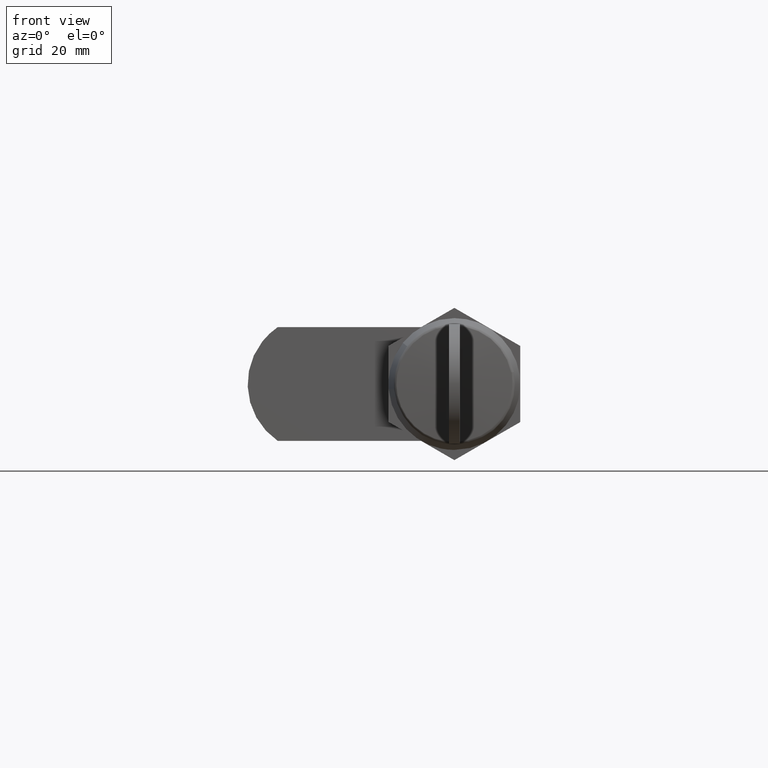
[diagram: clean part render]
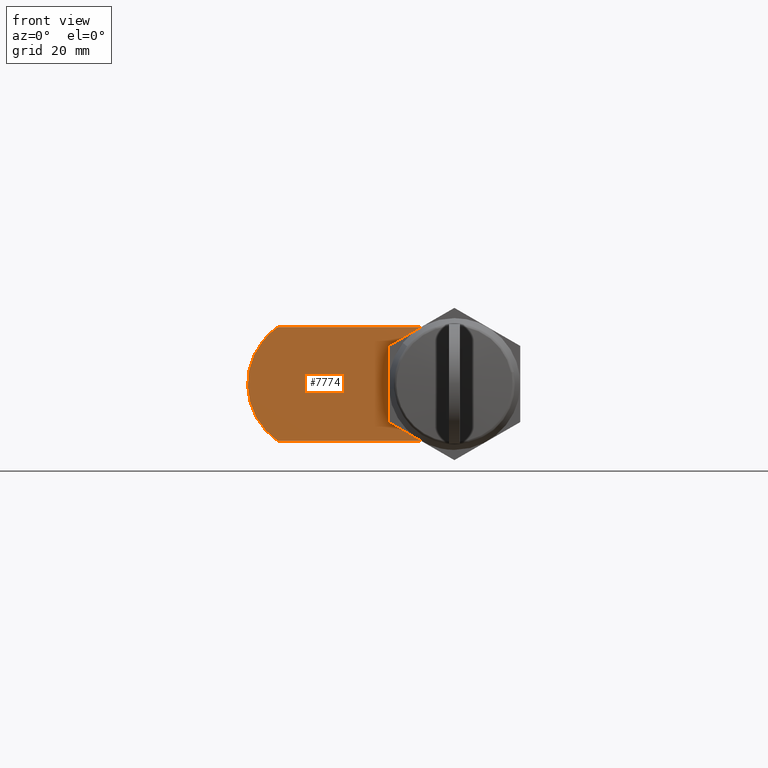
[diagram: same view with one face highlighted and labeled with its STEP entity id]
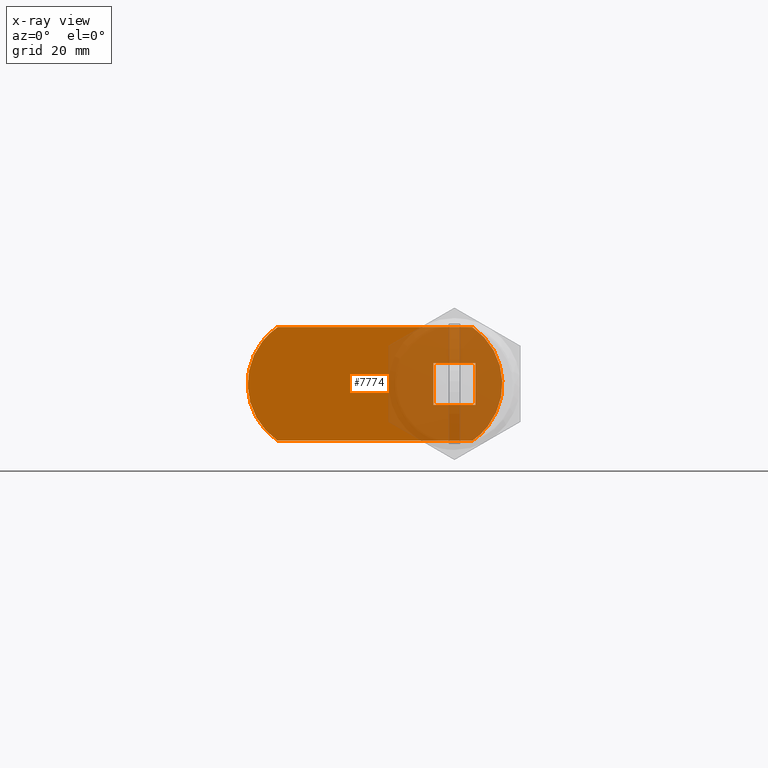
[diagram: x-ray of the same camera — body ghosted, the highlighted face saturated]
A machine part, front view. The second image highlights one B-rep face of the part: STEP entity #7774.
The next image is the same camera in x-ray: the body ghosted, the highlighted face saturated — about 38% of this face is hidden behind the body in this view.
In plain terms, the highlighted face is a freeform B-spline surface patch.
Its self-contained STEP definition (entity closure, byte-faithful):
#7606=CARTESIAN_POINT('',(22.101255000000101,3.500000000000000,-3.500000000000000));
#7607=VERTEX_POINT('',#7606);
#7608=CARTESIAN_POINT('',(22.101255000000151,-3.500000000000000,-3.500000000000000));
#7609=VERTEX_POINT('',#7608);
#7610=CARTESIAN_POINT('',(22.101255000000101,3.500000000000000,-3.500000000000000));
#7611=CARTESIAN_POINT('',(22.101255000000151,-3.500000000000000,-3.500000000000000));
#7612=QUASI_UNIFORM_CURVE('',1,(#7610,#7611),.UNSPECIFIED.,.F.,.U.);
#7613=EDGE_CURVE('',#7607,#7609,#7612,.T.);
#7642=CARTESIAN_POINT('',(22.101255000000151,3.500000000000000,3.500000000000000));
#7643=VERTEX_POINT('',#7642);
#7644=CARTESIAN_POINT('',(22.101255000000151,3.500000000000000,3.500000000000000));
#7645=CARTESIAN_POINT('',(22.101255000000101,3.500000000000000,-3.500000000000000));
#7646=QUASI_UNIFORM_CURVE('',1,(#7644,#7645),.UNSPECIFIED.,.F.,.U.);
#7647=EDGE_CURVE('',#7643,#7607,#7646,.T.);
#7670=CARTESIAN_POINT('',(22.101255000000151,-3.500000000000000,3.500000000000000));
#7671=VERTEX_POINT('',#7670);
#7672=CARTESIAN_POINT('',(22.101255000000151,-3.500000000000000,3.500000000000000));
#7673=CARTESIAN_POINT('',(22.101255000000151,3.500000000000000,3.500000000000000));
#7674=QUASI_UNIFORM_CURVE('',1,(#7672,#7673),.UNSPECIFIED.,.F.,.U.);
#7675=EDGE_CURVE('',#7671,#7643,#7674,.T.);
#7698=CARTESIAN_POINT('',(22.101255000000151,-3.500000000000000,-3.500000000000000));
#7699=CARTESIAN_POINT('',(22.101255000000151,-3.500000000000000,3.500000000000000));
#7700=QUASI_UNIFORM_CURVE('',1,(#7698,#7699),.UNSPECIFIED.,.F.,.U.);
#7701=EDGE_CURVE('',#7609,#7671,#7700,.T.);
#7713=CARTESIAN_POINT('',(22.101255000000101,-10.122874917626749,10.449049963174319));
#7714=CARTESIAN_POINT('',(22.101255000000101,36.622876057565563,10.449049963174319));
#7715=CARTESIAN_POINT('',(22.101255000000101,-10.122874917626749,-10.449050472794230));
#7716=CARTESIAN_POINT('',(22.101255000000101,36.622876057565563,-10.449050472794230));
#7717=B_SPLINE_SURFACE_WITH_KNOTS('',1,1,((#7713,#7715),(#7714,#7716)),.UNSPECIFIED.,.F.,.F.,.U.,(2,2),(2,2),(0.0,46.745750975192308),(0.0,20.898100435968558),.UNSPECIFIED.);
#7718=CARTESIAN_POINT('',(22.101255000000151,29.480741000000101,-9.500000000000199));
#7719=VERTEX_POINT('',#7718);
#7720=CARTESIAN_POINT('',(22.101255000000151,29.480741000000101,9.500000000000000));
#7721=VERTEX_POINT('',#7720);
#7722=CARTESIAN_POINT('',(22.101255000000151,29.480741000000101,-9.500000000000199));
#7723=CARTESIAN_POINT('',(22.101255000000155,34.500000297743824,-6.075945747461589));
#7724=CARTESIAN_POINT('',(22.101255000000151,34.499999999999993,-0.000000436457379));
#7725=CARTESIAN_POINT('',(22.101255000000155,34.499999702256140,6.075944874546834));
#7726=CARTESIAN_POINT('',(22.101255000000151,29.480741000000101,9.500000000000000));
#7734=(BOUNDED_CURVE()B_SPLINE_CURVE(2,(#7722,#7723,#7724,#7725,#7726),.UNSPECIFIED.,.F.,.U.)B_SPLINE_CURVE_WITH_KNOTS((3,2,3),(0.0,0.500000000000000,1.0),.UNSPECIFIED.)CURVE()GEOMETRIC_REPRESENTATION_ITEM()RATIONAL_B_SPLINE_CURVE((1.0,0.884178343809524,1.0,0.884178343809524,1.0))REPRESENTATION_ITEM(''));
#7735=EDGE_CURVE('',#7719,#7721,#7734,.T.);
#7736=ORIENTED_EDGE('',*,*,#7735,.F.);
#7737=CARTESIAN_POINT('',(22.101255000000151,-2.980740738733350,-9.499999972490629));
#7738=VERTEX_POINT('',#7737);
#7739=CARTESIAN_POINT('',(22.101255000000151,-2.980740738733350,-9.499999972490629));
#7740=CARTESIAN_POINT('',(22.101255000000151,29.480741000000101,-9.500000000000199));
#7741=QUASI_UNIFORM_CURVE('',1,(#7739,#7740),.UNSPECIFIED.,.F.,.U.);
#7742=EDGE_CURVE('',#7738,#7719,#7741,.T.);
#7743=ORIENTED_EDGE('',*,*,#7742,.F.);
#7744=CARTESIAN_POINT('',(22.101255000000151,-2.980740999999910,9.500000000000000));
#7745=VERTEX_POINT('',#7744);
#7746=CARTESIAN_POINT('',(22.101255000000151,-2.980740999999910,9.500000000000000));
#7747=CARTESIAN_POINT('',(22.101255000000158,-8.000000052920477,6.075945274902850));
#7748=CARTESIAN_POINT('',(22.101255000000151,-8.0,-0.000000100163092));
#7749=CARTESIAN_POINT('',(22.101255000000158,-7.999999947079524,-6.075945475229033));
#7750=CARTESIAN_POINT('',(22.101255000000151,-2.980740738733349,-9.499999972490627));
#7758=(BOUNDED_CURVE()B_SPLINE_CURVE(2,(#7746,#7747,#7748,#7749,#7750),.UNSPECIFIED.,.F.,.U.)B_SPLINE_CURVE_WITH_KNOTS((3,2,3),(0.0,0.500000000000000,1.0),.UNSPECIFIED.)CURVE()GEOMETRIC_REPRESENTATION_ITEM()RATIONAL_B_SPLINE_CURVE((1.0,0.884178341775124,1.0,0.884178341775124,1.0))REPRESENTATION_ITEM(''));
#7759=EDGE_CURVE('',#7745,#7738,#7758,.T.);
#7760=ORIENTED_EDGE('',*,*,#7759,.F.);
#7761=CARTESIAN_POINT('',(22.101255000000151,29.480741000000101,9.500000000000000));
#7762=CARTESIAN_POINT('',(22.101255000000151,-2.980740999999910,9.500000000000000));
#7763=QUASI_UNIFORM_CURVE('',1,(#7761,#7762),.UNSPECIFIED.,.F.,.U.);
#7764=EDGE_CURVE('',#7721,#7745,#7763,.T.);
#7765=ORIENTED_EDGE('',*,*,#7764,.F.);
#7766=EDGE_LOOP('',(#7736,#7743,#7760,#7765));
#7767=FACE_OUTER_BOUND('',#7766,.T.);
#7768=ORIENTED_EDGE('',*,*,#7675,.F.);
#7769=ORIENTED_EDGE('',*,*,#7701,.F.);
#7770=ORIENTED_EDGE('',*,*,#7613,.F.);
#7771=ORIENTED_EDGE('',*,*,#7647,.F.);
#7772=EDGE_LOOP('',(#7768,#7769,#7770,#7771));
#7773=FACE_BOUND('',#7772,.T.);
#7774=ADVANCED_FACE('',(#7767,#7773),#7717,.T.);